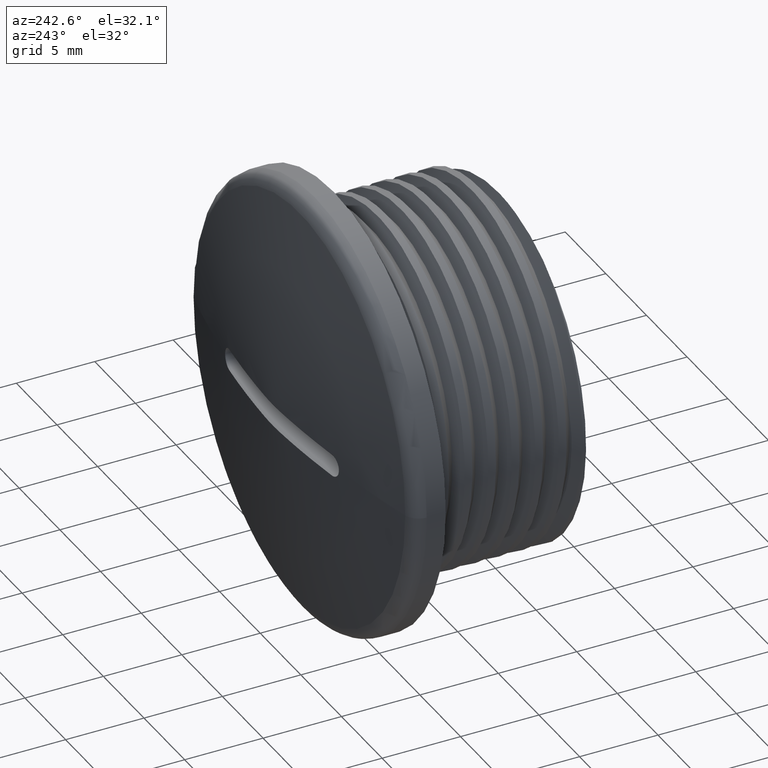
[diagram: clean part render]
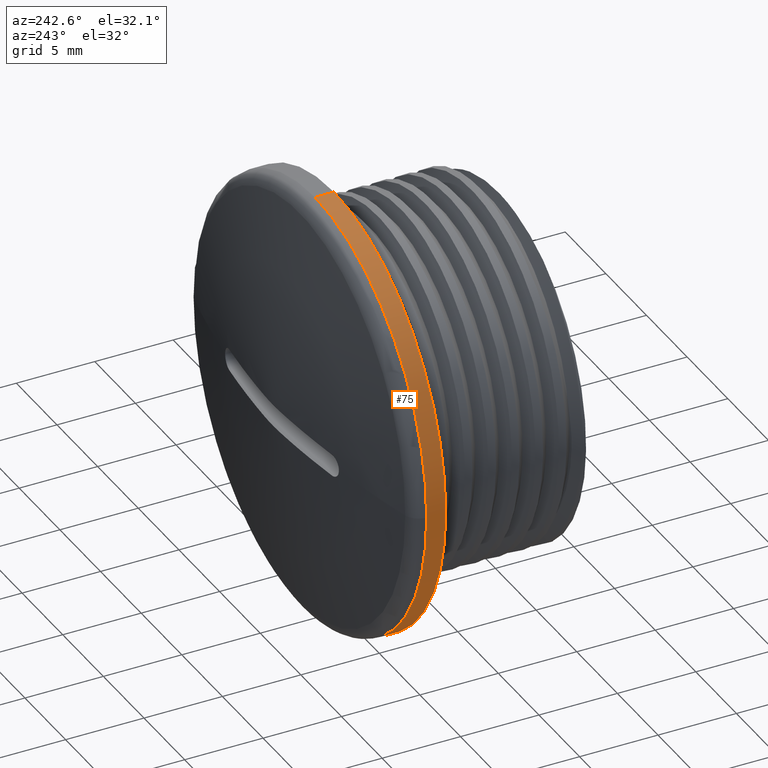
[diagram: same view with one face highlighted and labeled with its STEP entity id]
A machine part, auxiliary view. The second image highlights one B-rep face of the part: STEP entity #75.
In plain terms, the highlighted cylindrical surface (partial cylindrical patch) has radius 13.75 mm, axis along (-0, -1, -0).
Its self-contained STEP definition (entity closure, byte-faithful):
#45 = EDGE_LOOP ( 'NONE', ( #2060, #2049, #2019, #2031, #164 ) ) ;
#75 = ADVANCED_FACE ( 'NONE', ( #309 ), #291, .T. ) ;
#164 = ORIENTED_EDGE ( 'NONE', *, *, #488, .T. ) ;
#272 = DIRECTION ( 'NONE',  ( -0.0000000000000000000, -1.000000000000000000, -0.0000000000000000000 ) ) ;
#291 = CYLINDRICAL_SURFACE ( 'NONE', #1637, 13.75000000000000000 ) ;
#292 = DIRECTION ( 'NONE',  ( 0.0000000000000000000, 0.0000000000000000000, -1.000000000000000000 ) ) ;
#307 = CARTESIAN_POINT ( 'NONE',  ( 0.0000000000000000000, 12.74401010273006000, 0.0000000000000000000 ) ) ;
#309 = FACE_OUTER_BOUND ( 'NONE', #45, .T. ) ;
#343 = CARTESIAN_POINT ( 'NONE',  ( 1.683889348827610700E-015, 11.51158170808555200, 13.75000000000000000 ) ) ;
#416 = VERTEX_POINT ( 'NONE', #1558 ) ;
#458 = VERTEX_POINT ( 'NONE', #1568 ) ;
#459 = VERTEX_POINT ( 'NONE', #1565 ) ;
#488 = EDGE_CURVE ( 'NONE', #971, #416, #1670, .T. ) ;
#519 = EDGE_CURVE ( 'NONE', #459, #458, #1686, .T. ) ;
#523 = EDGE_CURVE ( 'NONE', #1837, #459, #1708, .T. ) ;
#524 = EDGE_CURVE ( 'NONE', #458, #971, #881, .T. ) ;
#532 = EDGE_CURVE ( 'NONE', #1837, #416, #928, .T. ) ;
#617 = CARTESIAN_POINT ( 'NONE',  ( 0.0000000000000000000, 10.30000000000000100, 0.0000000000000000000 ) ) ;
#618 = DIRECTION ( 'NONE',  ( 0.0000000000000000000, 1.000000000000000000, 0.0000000000000000000 ) ) ;
#619 = DIRECTION ( 'NONE',  ( 0.0000000000000000000, 0.0000000000000000000, -1.000000000000000000 ) ) ;
#858 = DIRECTION ( 'NONE',  ( -0.0000000000000000000, -1.000000000000000000, -0.0000000000000000000 ) ) ;
#862 = CARTESIAN_POINT ( 'NONE',  ( 0.0000000000000000000, 11.51158170808555200, 0.0000000000000000000 ) ) ;
#867 = CARTESIAN_POINT ( 'NONE',  ( 0.0000000000000000000, 12.74401010273006000, -13.75000000000000000 ) ) ;
#876 = CARTESIAN_POINT ( 'NONE',  ( 0.0000000000000000000, 11.51158170808555200, 0.0000000000000000000 ) ) ;
#881 = LINE ( 'NONE', #867, #1701 ) ;
#882 = DIRECTION ( 'NONE',  ( -0.0000000000000000000, -1.000000000000000000, -0.0000000000000000000 ) ) ;
#883 = DIRECTION ( 'NONE',  ( -0.0000000000000000000, -1.000000000000000000, -0.0000000000000000000 ) ) ;
#887 = DIRECTION ( 'NONE',  ( 0.0000000000000000000, 0.0000000000000000000, -1.000000000000000000 ) ) ;
#892 = DIRECTION ( 'NONE',  ( 0.0000000000000000000, 0.0000000000000000000, -1.000000000000000000 ) ) ;
#920 = CARTESIAN_POINT ( 'NONE',  ( 1.683889348827610700E-015, 12.74401010273006000, 13.75000000000000000 ) ) ;
#924 = DIRECTION ( 'NONE',  ( -0.0000000000000000000, -1.000000000000000000, -0.0000000000000000000 ) ) ;
#928 = LINE ( 'NONE', #920, #1702 ) ;
#971 = VERTEX_POINT ( 'NONE', #1050 ) ;
#1050 = CARTESIAN_POINT ( 'NONE',  ( 0.0000000000000000000, 10.30000000000000100, -13.75000000000000000 ) ) ;
#1558 = CARTESIAN_POINT ( 'NONE',  ( 1.683889348827610700E-015, 10.30000000000000100, 13.75000000000000000 ) ) ;
#1565 = CARTESIAN_POINT ( 'NONE',  ( -13.74999999999999800, 11.51158170808555200, 1.683889348827610500E-015 ) ) ;
#1568 = CARTESIAN_POINT ( 'NONE',  ( 0.0000000000000000000, 11.51158170808555200, -13.75000000000000000 ) ) ;
#1637 = AXIS2_PLACEMENT_3D ( 'NONE', #307, #272, #292 ) ;
#1658 = AXIS2_PLACEMENT_3D ( 'NONE', #617, #618, #619 ) ;
#1670 = CIRCLE ( 'NONE', #1658, 13.75000000000000000 ) ;
#1686 = CIRCLE ( 'NONE', #1687, 13.75000000000000000 ) ;
#1687 = AXIS2_PLACEMENT_3D ( 'NONE', #876, #858, #892 ) ;
#1701 = VECTOR ( 'NONE', #882, 1000.000000000000000 ) ;
#1702 = VECTOR ( 'NONE', #924, 1000.000000000000000 ) ;
#1703 = AXIS2_PLACEMENT_3D ( 'NONE', #862, #883, #887 ) ;
#1708 = CIRCLE ( 'NONE', #1703, 13.75000000000000000 ) ;
#1837 = VERTEX_POINT ( 'NONE', #343 ) ;
#2019 = ORIENTED_EDGE ( 'NONE', *, *, #519, .T. ) ;
#2031 = ORIENTED_EDGE ( 'NONE', *, *, #524, .T. ) ;
#2049 = ORIENTED_EDGE ( 'NONE', *, *, #523, .T. ) ;
#2060 = ORIENTED_EDGE ( 'NONE', *, *, #532, .F. ) ;